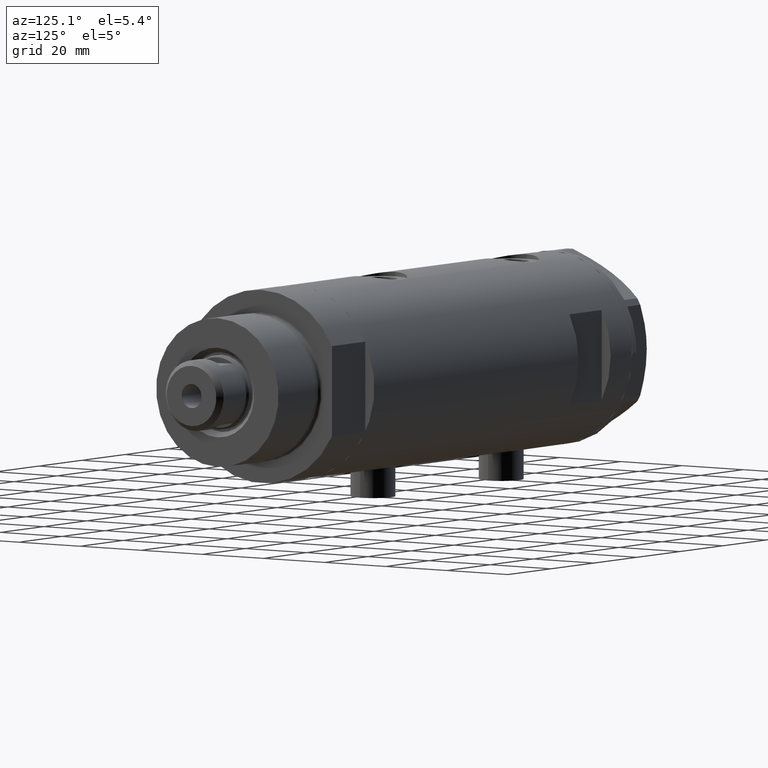
[diagram: clean part render]
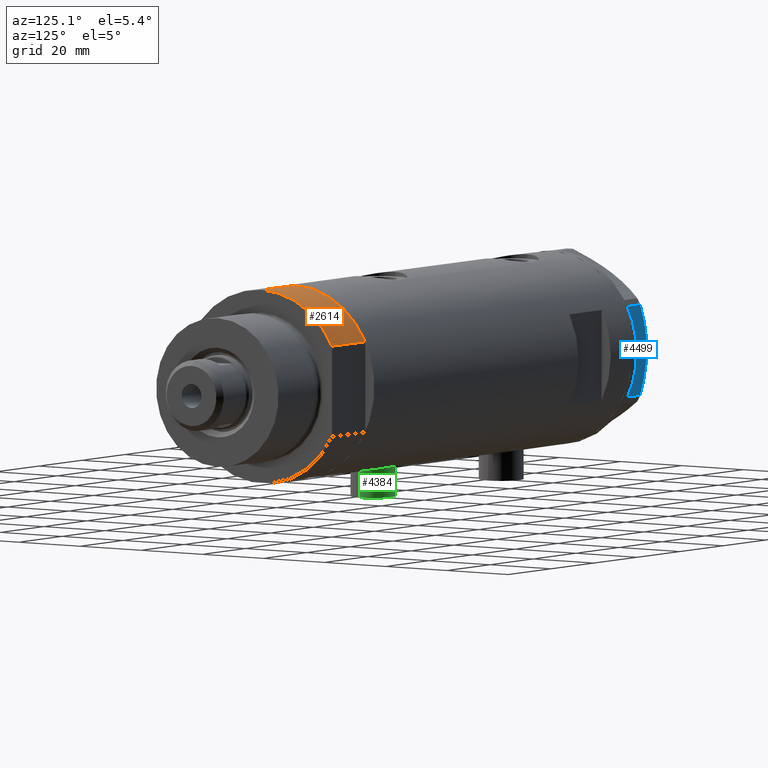
[diagram: same view with three faces highlighted in distinct colors, each labeled with its STEP entity id]
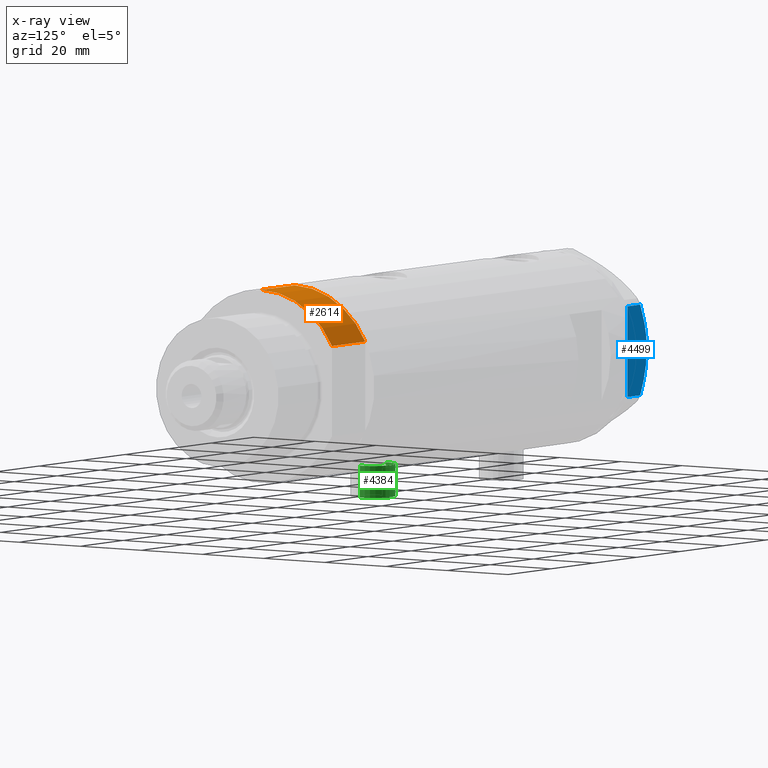
[diagram: x-ray of the same camera — body ghosted, the three highlighted faces saturated]
A machine part, auxiliary view with three faces highlighted in distinct colors.
The next image is the same camera in x-ray (body ghosted, the three faces saturated) — at least one of them is partly hidden behind the body in this view.
Their STEP definitions:

[orange] entity #2614 — the highlighted cylindrical surface (partial cylindrical patch) has radius 26 mm, axis along (-1, -0, 0).
#144 = VECTOR ( 'NONE', #2673, 1000.000000000000000 ) ;
#196 = ORIENTED_EDGE ( 'NONE', *, *, #3881, .T. ) ;
#325 = AXIS2_PLACEMENT_3D ( 'NONE', #3567, #1599, #4816 ) ;
#485 = CARTESIAN_POINT ( 'NONE',  ( -12.12435565298215145, 23.00000000000000355, 0.000000000000000000 ) ) ;
#732 = CIRCLE ( 'NONE', #5177, 26.00000000000000355 ) ;
#869 = CARTESIAN_POINT ( 'NONE',  ( -12.12435565298215145, 23.00000000000000355, 0.000000000000000000 ) ) ;
#1179 = EDGE_CURVE ( 'NONE', #2500, #1685, #732, .T. ) ;
#1254 = VERTEX_POINT ( 'NONE', #2852 ) ;
#1599 = DIRECTION ( 'NONE',  ( 0.000000000000000000, 0.000000000000000000, 1.000000000000000000 ) ) ;
#1685 = VERTEX_POINT ( 'NONE', #5008 ) ;
#1762 = LINE ( 'NONE', #1792, #144 ) ;
#1792 = CARTESIAN_POINT ( 'NONE',  ( -26.00000000000000355, 0.000000000000000000, 15.50000000000000000 ) ) ;
#1903 = VECTOR ( 'NONE', #3759, 1000.000000000000000 ) ;
#1946 = DIRECTION ( 'NONE',  ( -1.000000000000000000, 0.000000000000000000, 0.000000000000000000 ) ) ;
#2495 = LINE ( 'NONE', #869, #1903 ) ;
#2500 = VERTEX_POINT ( 'NONE', #4290 ) ;
#2538 = ORIENTED_EDGE ( 'NONE', *, *, #1179, .F. ) ;
#2614 = ADVANCED_FACE ( 'NONE', ( #4746 ), #3950, .T. ) ;
#2673 = DIRECTION ( 'NONE',  ( -0.000000000000000000, -0.000000000000000000, -1.000000000000000000 ) ) ;
#2782 = CARTESIAN_POINT ( 'NONE',  ( 0.000000000000000000, 0.000000000000000000, 15.50000000000000000 ) ) ;
#2852 = CARTESIAN_POINT ( 'NONE',  ( -26.00000000000000355, 0.000000000000000000, 0.000000000000000000 ) ) ;
#3168 = CARTESIAN_POINT ( 'NONE',  ( 0.000000000000000000, 0.000000000000000000, 15.50000000000000000 ) ) ;
#3417 = EDGE_CURVE ( 'NONE', #1685, #1254, #1762, .T. ) ;
#3534 = VERTEX_POINT ( 'NONE', #485 ) ;
#3547 = EDGE_CURVE ( 'NONE', #3534, #2500, #2495, .T. ) ;
#3567 = CARTESIAN_POINT ( 'NONE',  ( 0.000000000000000000, 0.000000000000000000, 0.000000000000000000 ) ) ;
#3759 = DIRECTION ( 'NONE',  ( -0.000000000000000000, -0.000000000000000000, 1.000000000000000000 ) ) ;
#3881 = EDGE_CURVE ( 'NONE', #3534, #1254, #4590, .T. ) ;
#3950 = CYLINDRICAL_SURFACE ( 'NONE', #4757, 26.00000000000000355 ) ;
#3956 = ORIENTED_EDGE ( 'NONE', *, *, #3547, .F. ) ;
#3975 = EDGE_LOOP ( 'NONE', ( #4389, #2538, #3956, #196 ) ) ;
#3994 = DIRECTION ( 'NONE',  ( 0.000000000000000000, 0.000000000000000000, 1.000000000000000000 ) ) ;
#4290 = CARTESIAN_POINT ( 'NONE',  ( -12.12435565298214613, 23.00000000000000355, 15.50000000000000000 ) ) ;
#4389 = ORIENTED_EDGE ( 'NONE', *, *, #3417, .F. ) ;
#4590 = CIRCLE ( 'NONE', #325, 26.00000000000000355 ) ;
#4746 = FACE_OUTER_BOUND ( 'NONE', #3975, .T. ) ;
#4757 = AXIS2_PLACEMENT_3D ( 'NONE', #3168, #4796, #1946 ) ;
#4796 = DIRECTION ( 'NONE',  ( -0.000000000000000000, -0.000000000000000000, -1.000000000000000000 ) ) ;
#4816 = DIRECTION ( 'NONE',  ( 1.000000000000000000, 0.000000000000000000, 0.000000000000000000 ) ) ;
#4847 = DIRECTION ( 'NONE',  ( 1.000000000000000000, 0.000000000000000000, 0.000000000000000000 ) ) ;
#5008 = CARTESIAN_POINT ( 'NONE',  ( -26.00000000000000355, 0.000000000000000000, 15.50000000000000000 ) ) ;
#5177 = AXIS2_PLACEMENT_3D ( 'NONE', #2782, #3994, #4847 ) ;

[blue] entity #4499 — the highlighted planar face has unit normal (0, -1, 0).
#187 = CARTESIAN_POINT ( 'NONE',  ( 22.99999999999990763, 4.203926054642127319, 8.641681223122510858 ) ) ;
#204 = CARTESIAN_POINT ( 'NONE',  ( 23.00000000000007461, -12.12435565298200224, 0.000000000000000000 ) ) ;
#215 = CARTESIAN_POINT ( 'NONE',  ( 22.99999999999984368, 11.20155944044832630, 6.421102682632754188 ) ) ;
#387 = CARTESIAN_POINT ( 'NONE',  ( 23.00000000000002132, -6.734330413511252722, 8.039389741252669808 ) ) ;
#451 = CARTESIAN_POINT ( 'NONE',  ( 23.00000000000008527, -13.27905619136115867, 0.000000000000000000 ) ) ;
#541 = VERTEX_POINT ( 'NONE', #2189 ) ;
#577 = CARTESIAN_POINT ( 'NONE',  ( 22.99999999999982236, 12.15905619136163729, 0.000000000000000000 ) ) ;
#764 = CARTESIAN_POINT ( 'NONE',  ( 22.99999999999995026, 2.373657066004705010E-13, 9.000000000000000000 ) ) ;
#908 = EDGE_LOOP ( 'NONE', ( #3940, #2042, #4878, #1938, #5051, #2739, #1926 ) ) ;
#948 = CARTESIAN_POINT ( 'NONE',  ( 22.99999999999993960, 1.063773509315896648, 8.981438083606837708 ) ) ;
#964 = DIRECTION ( 'NONE',  ( 1.032024811306395780E-14, -1.000000000000000000, 0.000000000000000000 ) ) ;
#988 = EDGE_CURVE ( 'NONE', #3041, #2291, #5044, .T. ) ;
#1000 = B_SPLINE_CURVE_WITH_KNOTS ( 'NONE', 3,
 ( #4858, #2395, #2863, #1610, #2368, #3974, #387, #2787, #1251, #1587 ),
 .UNSPECIFIED., .F., .F.,
 ( 4, 2, 2, 2, 4 ),
 ( 0.03516523594057417712, 0.03831677594541235687, 0.03989254594783144675, 0.04146831595025053663, 0.04777139595992689614 ),
 .UNSPECIFIED. ) ;
#1007 = CARTESIAN_POINT ( 'NONE',  ( 22.99999999999992184, 2.643615312305318099, 8.854304560636265364 ) ) ;
#1251 = CARTESIAN_POINT ( 'NONE',  ( 22.99999999999997513, -2.122900714017905699, 9.000000000000095923 ) ) ;
#1272 = VECTOR ( 'NONE', #2171, 1000.000000000000000 ) ;
#1319 = CARTESIAN_POINT ( 'NONE',  ( 22.99999999999990052, 5.228918809624284236, 8.433337033849852560 ) ) ;
#1509 = CARTESIAN_POINT ( 'NONE',  ( 23.00000000000008527, -13.27905619136115867, 0.000000000000000000 ) ) ;
#1533 = DIRECTION ( 'NONE',  ( -1.032024811306395780E-14, 1.000000000000000000, 0.000000000000000000 ) ) ;
#1587 = CARTESIAN_POINT ( 'NONE',  ( 22.99999999999995026, 2.373657066004705010E-13, 9.000000000000000000 ) ) ;
#1610 = CARTESIAN_POINT ( 'NONE',  ( 23.00000000000004263, -8.748091966971204059, 7.396818978284578350 ) ) ;
#1764 = FACE_OUTER_BOUND ( 'NONE', #908, .T. ) ;
#1780 = CARTESIAN_POINT ( 'NONE',  ( 22.99999999999985079, 9.734726261263462632, 7.028924700095659617 ) ) ;
#1807 = CARTESIAN_POINT ( 'NONE',  ( 22.99999999999982947, 11.68282849742352525, 6.206372352695418648 ) ) ;
#1926 = ORIENTED_EDGE ( 'NONE', *, *, #988, .F. ) ;
#1938 = ORIENTED_EDGE ( 'NONE', *, *, #4949, .T. ) ;
#2042 = ORIENTED_EDGE ( 'NONE', *, *, #2834, .T. ) ;
#2055 = LINE ( 'NONE', #451, #3448 ) ;
#2078 = DIRECTION ( 'NONE',  ( -1.032024811306395780E-14, 1.000000000000000000, 0.000000000000000000 ) ) ;
#2151 = LINE ( 'NONE', #4521, #2565 ) ;
#2170 = CARTESIAN_POINT ( 'NONE',  ( 23.00000000000007461, -12.15905619136115590, 9.000000000000000000 ) ) ;
#2171 = DIRECTION ( 'NONE',  ( -1.032024811306395780E-14, 1.000000000000000000, 0.000000000000000000 ) ) ;
#2189 = CARTESIAN_POINT ( 'NONE',  ( 22.99999999999982592, 12.12435565298247653, 0.000000000000000000 ) ) ;
#2236 = LINE ( 'NONE', #1509, #4924 ) ;
#2291 = VERTEX_POINT ( 'NONE', #4553 ) ;
#2294 = CARTESIAN_POINT ( 'NONE',  ( 23.00000000000007461, -12.15905619136115590, 0.000000000000000000 ) ) ;
#2303 = VECTOR ( 'NONE', #4962, 1000.000000000000000 ) ;
#2368 = CARTESIAN_POINT ( 'NONE',  ( 23.00000000000003197, -8.246028007352183664, 7.571131808646910599 ) ) ;
#2395 = CARTESIAN_POINT ( 'NONE',  ( 23.00000000000006395, -11.20825071633898240, 6.428173306378455187 ) ) ;
#2476 = EDGE_CURVE ( 'NONE', #541, #4475, #2236, .T. ) ;
#2565 = VECTOR ( 'NONE', #2964, 1000.000000000000000 ) ;
#2587 = LINE ( 'NONE', #4182, #1272 ) ;
#2633 = CARTESIAN_POINT ( 'NONE',  ( 22.99999999999994671, 0.5295934231899334099, 9.000000000000095923 ) ) ;
#2739 = ORIENTED_EDGE ( 'NONE', *, *, #2792, .T. ) ;
#2787 = CARTESIAN_POINT ( 'NONE',  ( 22.99999999999999289, -4.194757081058811288, 8.703000351525204792 ) ) ;
#2792 = EDGE_CURVE ( 'NONE', #4475, #2291, #2151, .T. ) ;
#2834 = EDGE_CURVE ( 'NONE', #3461, #4247, #3732, .T. ) ;
#2863 = CARTESIAN_POINT ( 'NONE',  ( 23.00000000000005684, -10.23890159976104641, 6.840812428290920622 ) ) ;
#2909 = CARTESIAN_POINT ( 'NONE',  ( 22.99999999999982236, 12.15905619136164262, 5.983800287807618190 ) ) ;
#2964 = DIRECTION ( 'NONE',  ( 0.000000000000000000, 0.000000000000000000, 1.000000000000000000 ) ) ;
#2973 = CARTESIAN_POINT ( 'NONE',  ( 23.00000000000008527, -13.27905619136115867, 9.000000000000000000 ) ) ;
#2988 = CARTESIAN_POINT ( 'NONE',  ( 22.99999999999986500, 8.252113629125430450, 7.581642062680224115 ) ) ;
#3041 = VERTEX_POINT ( 'NONE', #764 ) ;
#3435 = CARTESIAN_POINT ( 'NONE',  ( 22.99999999999995026, 2.373657066004705010E-13, 9.000000000000000000 ) ) ;
#3448 = VECTOR ( 'NONE', #2078, 1000.000000000000000 ) ;
#3461 = VERTEX_POINT ( 'NONE', #3601 ) ;
#3601 = CARTESIAN_POINT ( 'NONE',  ( 23.00000000000007461, -12.15905619136115412, 5.983800287807623519 ) ) ;
#3732 = LINE ( 'NONE', #2170, #2303 ) ;
#3818 = CARTESIAN_POINT ( 'NONE',  ( 22.99999999999992539, 2.119709279062085727, 8.908535212173203988 ) ) ;
#3940 = ORIENTED_EDGE ( 'NONE', *, *, #4788, .F. ) ;
#3974 = CARTESIAN_POINT ( 'NONE',  ( 23.00000000000002842, -7.239756182922028493, 7.892186063422852449 ) ) ;
#4174 = CARTESIAN_POINT ( 'NONE',  ( 22.99999999999987921, 7.253003311474552461, 7.903276810347635184 ) ) ;
#4182 = CARTESIAN_POINT ( 'NONE',  ( 23.00000000000008527, -13.27905619136115867, 0.000000000000000000 ) ) ;
#4247 = VERTEX_POINT ( 'NONE', #2294 ) ;
#4402 = VERTEX_POINT ( 'NONE', #204 ) ;
#4475 = VERTEX_POINT ( 'NONE', #577 ) ;
#4499 = ADVANCED_FACE ( 'NONE', ( #1764 ), #4504, .F. ) ;
#4504 = PLANE ( 'NONE',  #5070 ) ;
#4521 = CARTESIAN_POINT ( 'NONE',  ( 22.99999999999982236, 12.15905619136163729, 9.000000000000000000 ) ) ;
#4553 = CARTESIAN_POINT ( 'NONE',  ( 22.99999999999982236, 12.15905619136164262, 5.983800287807618190 ) ) ;
#4599 = CARTESIAN_POINT ( 'NONE',  ( 22.99999999999983658, 10.22738952213810926, 6.832470313674774864 ) ) ;
#4617 = DIRECTION ( 'NONE',  ( -1.000000000000000000, -1.032024811306395780E-14, 0.000000000000000000 ) ) ;
#4788 = EDGE_CURVE ( 'NONE', #3461, #3041, #1000, .T. ) ;
#4858 = CARTESIAN_POINT ( 'NONE',  ( 23.00000000000007461, -12.15905619136115412, 5.983800287807623519 ) ) ;
#4878 = ORIENTED_EDGE ( 'NONE', *, *, #5164, .T. ) ;
#4924 = VECTOR ( 'NONE', #1533, 1000.000000000000000 ) ;
#4949 = EDGE_CURVE ( 'NONE', #4402, #541, #2587, .T. ) ;
#4962 = DIRECTION ( 'NONE',  ( 0.000000000000000000, 0.000000000000000000, -1.000000000000000000 ) ) ;
#5044 = B_SPLINE_CURVE_WITH_KNOTS ( 'NONE', 3,
 ( #3435, #2633, #948, #3818, #1007, #187, #1319, #4174, #2988, #1780, #4599, #215, #1807, #2909 ),
 .UNSPECIFIED., .F., .F.,
 ( 4, 2, 2, 2, 2, 2, 4 ),
 ( 0.04777139595992689614, 0.04934380568070229067, 0.05091621540147768521, 0.05406103484302848122, 0.05720585428457927030, 0.05877826400535466483, 0.06035067372613005937 ),
 .UNSPECIFIED. ) ;
#5051 = ORIENTED_EDGE ( 'NONE', *, *, #2476, .T. ) ;
#5070 = AXIS2_PLACEMENT_3D ( 'NONE', #2973, #4617, #964 ) ;
#5164 = EDGE_CURVE ( 'NONE', #4247, #4402, #2055, .T. ) ;

[green] entity #4384 — the highlighted cylindrical surface (edge-blend (fillet) strip) has radius 6 mm, axis along (0, 0, 1).
#140 = VERTEX_POINT ( 'NONE', #3370 ) ;
#219 = VERTEX_POINT ( 'NONE', #3960 ) ;
#252 = CARTESIAN_POINT ( 'NONE',  ( -33.39999999999999858, 7.347880794884121708E-16, -17.67500000000000071 ) ) ;
#253 = ORIENTED_EDGE ( 'NONE', *, *, #3604, .F. ) ;
#478 = DIRECTION ( 'NONE',  ( 1.000000000000000000, -0.000000000000000000, -0.000000000000000000 ) ) ;
#625 = DIRECTION ( 'NONE',  ( 1.000000000000000000, -0.000000000000000000, -0.000000000000000000 ) ) ;
#644 = CARTESIAN_POINT ( 'NONE',  ( -24.80000000000000426, 7.347880794884123680E-16, -17.67499999999999716 ) ) ;
#990 = AXIS2_PLACEMENT_3D ( 'NONE', #1523, #4738, #4334 ) ;
#1036 = CARTESIAN_POINT ( 'NONE',  ( -33.39999999999999858, 0.000000000000000000, -23.67500000000000071 ) ) ;
#1042 = DIRECTION ( 'NONE',  ( 0.000000000000000000, 0.000000000000000000, -1.000000000000000000 ) ) ;
#1337 = CARTESIAN_POINT ( 'NONE',  ( -33.39999999999999858, 0.000000000000000000, -29.67500000000000426 ) ) ;
#1508 = CARTESIAN_POINT ( 'NONE',  ( -33.39999999999999858, 0.000000000000000000, -23.67500000000000071 ) ) ;
#1523 = CARTESIAN_POINT ( 'NONE',  ( -24.80000000000000426, 0.000000000000000000, -23.67500000000000071 ) ) ;
#1931 = ORIENTED_EDGE ( 'NONE', *, *, #3615, .T. ) ;
#2079 = LINE ( 'NONE', #1337, #3690 ) ;
#2361 = AXIS2_PLACEMENT_3D ( 'NONE', #1508, #625, #1042 ) ;
#2684 = DIRECTION ( 'NONE',  ( -1.000000000000000000, 0.000000000000000000, 0.000000000000000000 ) ) ;
#2691 = EDGE_LOOP ( 'NONE', ( #253, #1931, #3403, #3765 ) ) ;
#3076 = CIRCLE ( 'NONE', #990, 6.000000000000001776 ) ;
#3370 = CARTESIAN_POINT ( 'NONE',  ( -33.39999999999999858, 0.000000000000000000, -29.67500000000000782 ) ) ;
#3403 = ORIENTED_EDGE ( 'NONE', *, *, #3860, .T. ) ;
#3604 = EDGE_CURVE ( 'NONE', #4006, #140, #4337, .T. ) ;
#3615 = EDGE_CURVE ( 'NONE', #4006, #3768, #4659, .T. ) ;
#3690 = VECTOR ( 'NONE', #478, 1000.000000000000000 ) ;
#3765 = ORIENTED_EDGE ( 'NONE', *, *, #4008, .F. ) ;
#3768 = VERTEX_POINT ( 'NONE', #644 ) ;
#3860 = EDGE_CURVE ( 'NONE', #3768, #219, #3076, .T. ) ;
#3960 = CARTESIAN_POINT ( 'NONE',  ( -24.80000000000000426, 0.000000000000000000, -29.67500000000000782 ) ) ;
#4002 = AXIS2_PLACEMENT_3D ( 'NONE', #1036, #2684, #4601 ) ;
#4006 = VERTEX_POINT ( 'NONE', #4135 ) ;
#4008 = EDGE_CURVE ( 'NONE', #140, #219, #2079, .T. ) ;
#4135 = CARTESIAN_POINT ( 'NONE',  ( -33.39999999999999858, 7.347880794884123680E-16, -17.67499999999999716 ) ) ;
#4166 = VECTOR ( 'NONE', #4306, 1000.000000000000000 ) ;
#4306 = DIRECTION ( 'NONE',  ( 1.000000000000000000, -0.000000000000000000, -0.000000000000000000 ) ) ;
#4334 = DIRECTION ( 'NONE',  ( 0.000000000000000000, 0.000000000000000000, 1.000000000000000000 ) ) ;
#4337 = CIRCLE ( 'NONE', #4002, 6.000000000000001776 ) ;
#4384 = ADVANCED_FACE ( 'NONE', ( #4719 ), #5137, .T. ) ;
#4601 = DIRECTION ( 'NONE',  ( 0.000000000000000000, 0.000000000000000000, 1.000000000000000000 ) ) ;
#4659 = LINE ( 'NONE', #252, #4166 ) ;
#4719 = FACE_OUTER_BOUND ( 'NONE', #2691, .T. ) ;
#4738 = DIRECTION ( 'NONE',  ( -1.000000000000000000, 0.000000000000000000, 0.000000000000000000 ) ) ;
#5137 = CYLINDRICAL_SURFACE ( 'NONE', #2361, 6.000000000000001776 ) ;